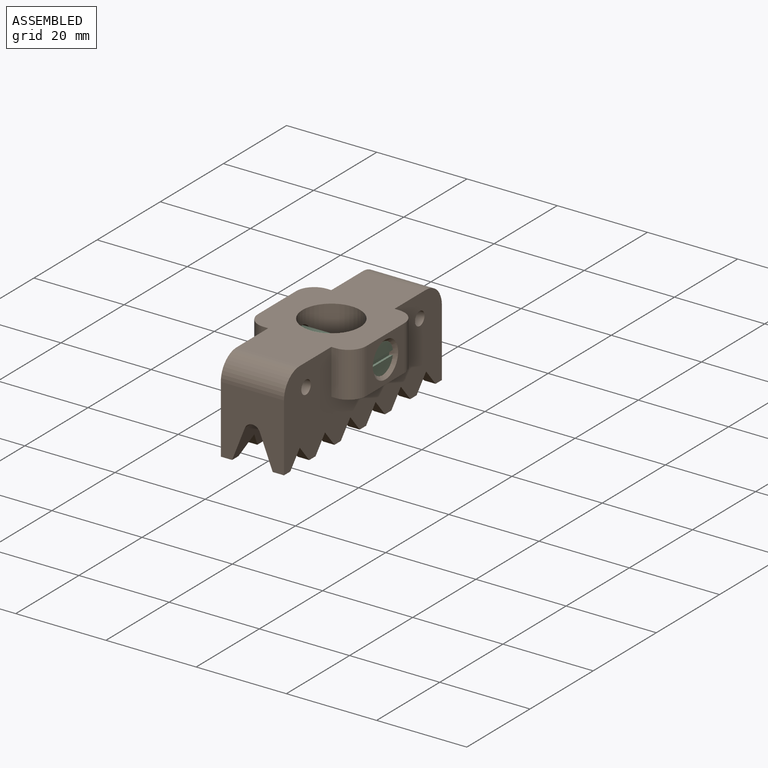
[diagram: assembled view]
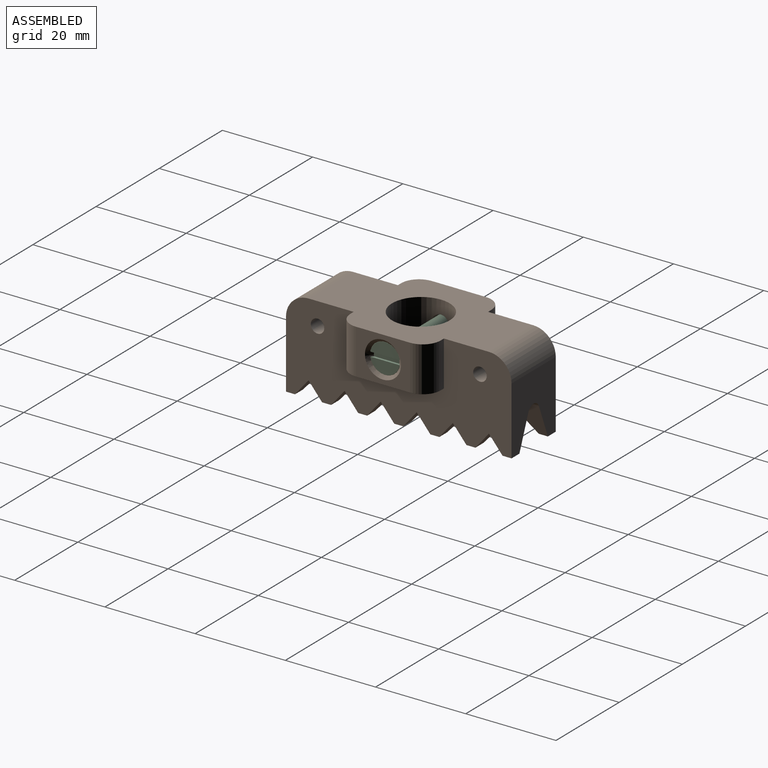
[diagram: assembled view, second angle]
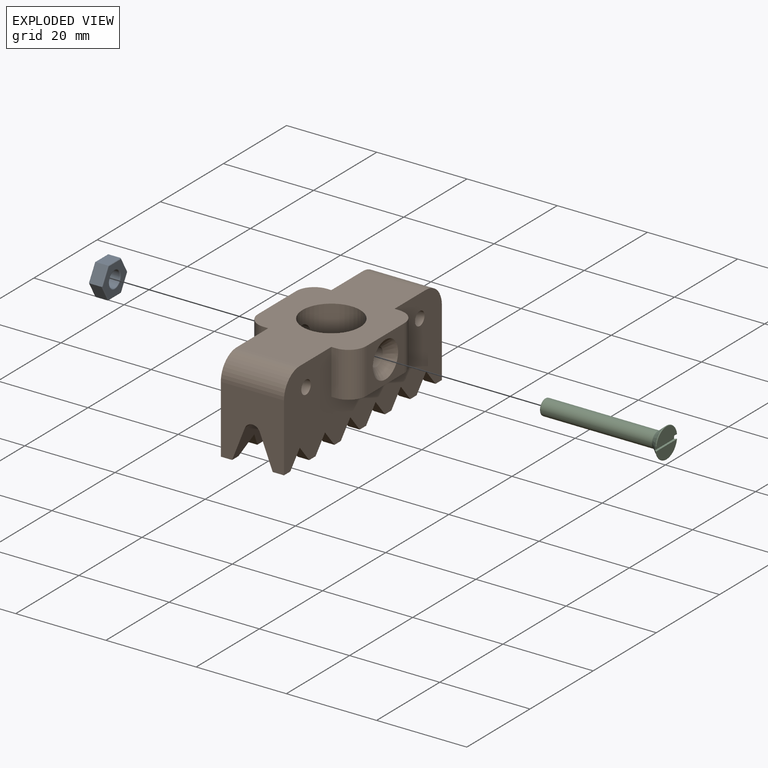
[diagram: exploded view]
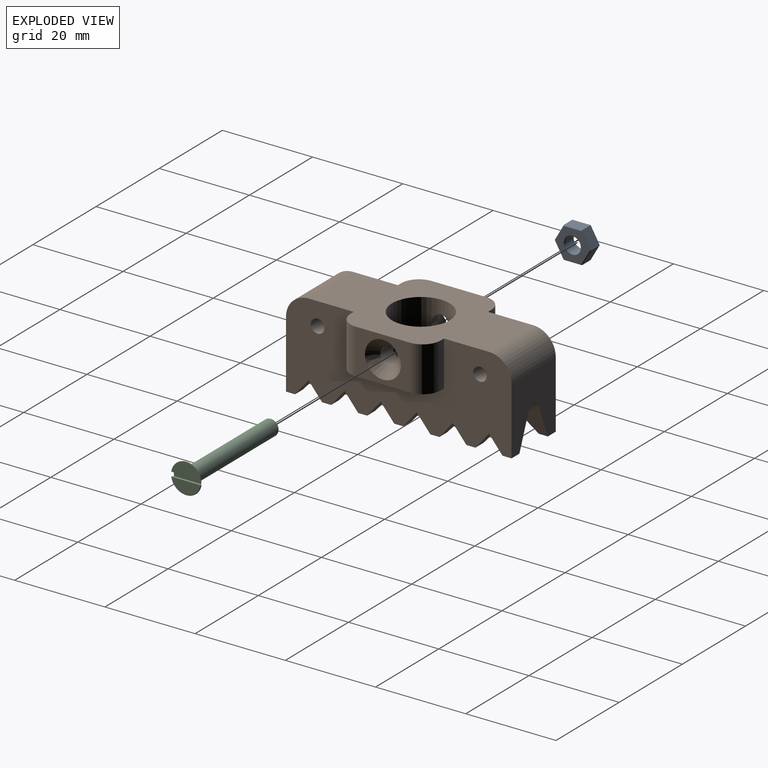
[diagram: exploded view, second angle]
ASSEMBLY  parts=3 mates=2
PART A: 23 faces, bbox 7x8.1x3 mm
  f0: plane 3.5x2.6mm, normal (0.5,-0.87,0), area 10.5mm2, adj f1,f5,f12,f19
  f1: plane 4.04x2.6mm, normal (1,0,0), area 10.5mm2, adj f0,f2,f10,f17
  f2: plane 3.5x2.6mm, normal (0.5,0.87,0), area 10.5mm2, adj f1,f3,f9,f16
  f3: plane 3.5x2.6mm, normal (-0.5,0.87,0), area 10.5mm2, adj f2,f4,f11,f18
  f4: plane 4.04x2.6mm, normal (-1,0,0), area 10.5mm2, adj f3,f5,f13,f20
  f5: plane 3.5x2.6mm, normal (-0.5,-0.87,0), area 10.5mm2, adj f0,f4,f14,f21
  f6: cylinder r=1.75mm len=3.5mm, axis (0,0,-1), area 28.6mm2, adj f15,f22
  f7: plane 7.62x6.6mm, normal (0,0,1), area 25.8mm2, adj f16,f17,f18,f19,f20,f21,f22
  f8: plane 7.62x6.6mm, normal (0,0,-1), area 25.8mm2, adj f9,f10,f11,f12,f13,f14,f15
  f9: cylinder r=0.2mm len=3.6mm, axis (-0.87,0.5,0), area 1.2mm2, adj f2,f8,f10,f11
  f10: cylinder r=0.2mm len=4.04mm, axis (0,1,0), area 1.2mm2, adj f1,f8,f9,f12
  f11: cylinder r=0.2mm len=3.6mm, axis (-0.87,-0.5,0), area 1.2mm2, adj f3,f8,f9,f13
  f12: cylinder r=0.2mm len=3.6mm, axis (0.87,0.5,0), area 1.2mm2, adj f0,f8,f10,f14
  f13: cylinder r=0.2mm len=4.04mm, axis (0,-1,0), area 1.2mm2, adj f4,f8,f11,f14
  f14: cylinder r=0.2mm len=3.6mm, axis (0.87,-0.5,0), area 1.2mm2, adj f5,f8,f12,f13
  f15: torus R=1.95mm, axis (0,0,1), area 3.6mm2, adj f6,f8
  f16: cylinder r=0.2mm len=3.6mm, axis (0.87,-0.5,0), area 1.2mm2, adj f2,f7,f17,f18
  f17: cylinder r=0.2mm len=4.04mm, axis (0,-1,0), area 1.2mm2, adj f1,f7,f16,f19
  f18: cylinder r=0.2mm len=3.6mm, axis (0.87,0.5,0), area 1.2mm2, adj f3,f7,f16,f20
  f19: cylinder r=0.2mm len=3.6mm, axis (-0.87,-0.5,0), area 1.2mm2, adj f0,f7,f17,f21
  f20: cylinder r=0.2mm len=4.04mm, axis (0,1,0), area 1.2mm2, adj f4,f7,f18,f21
  f21: cylinder r=0.2mm len=3.6mm, axis (-0.87,0.5,0), area 1.2mm2, adj f5,f7,f19,f20
  f22: torus R=1.95mm, axis (0,0,1), area 3.6mm2, adj f6,f7
PART B: 74 faces, bbox 24x50x20 mm
  f0: plane 12x10mm, normal (-1,0,0), area 75.1mm2, adj f19,f58,f59,f60,f65,f66,f67,f68
  f1: cylinder r=2mm len=4mm, axis (1,0,0), area 20.1mm2, adj f61,f71
  f2: plane 50x20mm, normal (-1,0,0), area 710mm2, adj f10,f11,f12,f13,f14,f15,f17,f18
  f3: plane 50x20mm, normal (1,0,0), area 710mm2, adj f4,f5,f6,f7,f8,f9,f16,f17
  f4: plane 2.5x2mm, normal (0,0,-1), area 5mm2, adj f3,f17,f23,f48
  f5: plane 2.5x2mm, normal (0,0,-1), area 5mm2, adj f3,f23,f46,f49
  f6: plane 2.5x2mm, normal (0,0,-1), area 5mm2, adj f3,f23,f44,f47
  f7: plane 2.5x2mm, normal (0,0,-1), area 5mm2, adj f3,f23,f42,f45
  f8: plane 2.5x2mm, normal (0,0,-1), area 5mm2, adj f3,f23,f40,f43
  f9: plane 2.5x2mm, normal (0,0,-1), area 5mm2, adj f3,f23,f38,f41
  f10: plane 2.5x2mm, normal (0,0,-1), area 5mm2, adj f2,f17,f25,f37
  f11: plane 2.5x2mm, normal (0,0,-1), area 5mm2, adj f2,f25,f35,f36
  f12: plane 2.5x2mm, normal (0,0,-1), area 5mm2, adj f2,f25,f33,f34
  f13: plane 2.5x2mm, normal (0,0,-1), area 5mm2, adj f2,f25,f31,f32
  f14: plane 2.5x2mm, normal (0,0,-1), area 5mm2, adj f2,f25,f29,f30
  f15: plane 2.5x2mm, normal (0,0,-1), area 5mm2, adj f2,f25,f27,f28
  f16: plane 2.5x2mm, normal (0,0,-1), area 5mm2, adj f3,f18,f23,f39
  f17: plane 15x14mm, normal (0,1,0), area 163mm2, adj f2,f3,f4,f10,f22,f23,f24,f25
  f18: plane 15x14mm, normal (0,-1,0), area 163mm2, adj f2,f3,f16,f20,f21,f23,f24,f25
  f19: plane 40x24mm, normal (0,0,1), area 617.6mm2, adj f0,f2,f3,f21,f22,f50,f51,f52
  f20: plane 2.5x2mm, normal (0,0,-1), area 5mm2, adj f2,f18,f25,f26
  f21: cylinder r=5mm len=14mm, axis (-1,0,0), area 110mm2, adj f2,f3,f18,f19
  f22: cylinder r=5mm len=14mm, axis (1,0,0), area 110mm2, adj f2,f3,f17,f19
  f23: plane 50x7.16mm, normal (-0.93,0,-0.37), area 314.9mm2, adj f4,f5,f6,f7,f8,f9,f16,f17
  f24: cylinder r=1.8mm len=50mm, axis (0,-1,0), area 215.1mm2, adj f17,f18,f23,f25
  f25: plane 50x7.16mm, normal (0.93,0,-0.37), area 314.9mm2, adj f10,f11,f12,f13,f14,f15,f17,f18
  f26: plane 3.93x3.62mm, normal (0,0.77,-0.64), area 15.1mm2, adj f2,f20,f25,f27
  f27: plane 3.93x3.62mm, normal (0,-0.77,-0.64), area 15.1mm2, adj f2,f15,f25,f26
  f28: plane 3.93x3.62mm, normal (0,0.77,-0.64), area 15.1mm2, adj f2,f15,f25,f29
  f29: plane 3.93x3.62mm, normal (0,-0.77,-0.64), area 15.1mm2, adj f2,f14,f25,f28
  f30: plane 3.93x3.62mm, normal (0,0.77,-0.64), area 15.1mm2, adj f2,f14,f25,f31
  f31: plane 3.93x3.62mm, normal (0,-0.77,-0.64), area 15.1mm2, adj f2,f13,f25,f30
  f32: plane 3.93x3.62mm, normal (0,0.77,-0.64), area 15.1mm2, adj f2,f13,f25,f33
  f33: plane 3.93x3.62mm, normal (0,-0.77,-0.64), area 15.1mm2, adj f2,f12,f25,f32
  f34: plane 3.93x3.62mm, normal (0,0.77,-0.64), area 15.1mm2, adj f2,f12,f25,f35
  f35: plane 3.93x3.62mm, normal (0,-0.77,-0.64), area 15.1mm2, adj f2,f11,f25,f34
  f36: plane 3.93x3.62mm, normal (0,0.77,-0.64), area 15.1mm2, adj f2,f11,f25,f37
  f37: plane 3.93x3.62mm, normal (0,-0.77,-0.64), area 15.1mm2, adj f2,f10,f25,f36
  f38: plane 3.93x3.62mm, normal (0,-0.77,-0.64), area 15.1mm2, adj f3,f9,f23,f39
  f39: plane 3.93x3.62mm, normal (0,0.77,-0.64), area 15.1mm2, adj f3,f16,f23,f38
  f40: plane 3.93x3.62mm, normal (0,-0.77,-0.64), area 15.1mm2, adj f3,f8,f23,f41
  f41: plane 3.93x3.62mm, normal (0,0.77,-0.64), area 15.1mm2, adj f3,f9,f23,f40
  f42: plane 3.93x3.62mm, normal (0,-0.77,-0.64), area 15.1mm2, adj f3,f7,f23,f43
  f43: plane 3.93x3.62mm, normal (0,0.77,-0.64), area 15.1mm2, adj f3,f8,f23,f42
  f44: plane 3.93x3.62mm, normal (0,-0.77,-0.64), area 15.1mm2, adj f3,f6,f23,f45
  f45: plane 3.93x3.62mm, normal (0,0.77,-0.64), area 15.1mm2, adj f3,f7,f23,f44
  f46: plane 3.93x3.62mm, normal (0,-0.77,-0.64), area 15.1mm2, adj f3,f5,f23,f47
  f47: plane 3.93x3.62mm, normal (0,0.77,-0.64), area 15.1mm2, adj f3,f6,f23,f46
  f48: plane 3.93x3.62mm, normal (0,-0.77,-0.64), area 15.1mm2, adj f3,f4,f23,f49
  f49: plane 3.93x3.62mm, normal (0,0.77,-0.64), area 15.1mm2, adj f3,f5,f23,f48
  f50: cylinder r=4mm len=10mm, axis (0,0,-1), area 62.8mm2, adj f19,f51,f53,f55
  f51: plane 12x10mm, normal (1,0,0), area 69.7mm2, adj f19,f50,f52,f53,f64
  f52: cylinder r=4mm len=10mm, axis (0,0,-1), area 62.8mm2, adj f19,f51,f53,f54
  f53: plane 20x5mm, normal (0,0,-1), area 93.1mm2, adj f3,f50,f51,f52,f54,f55
  f54: plane 10x1mm, normal (0,1,0), area 10mm2, adj f3,f19,f52,f53
  f55: plane 10x1mm, normal (0,-1,0), area 10mm2, adj f3,f19,f50,f53
  f56: plane 10x1mm, normal (0,-1,0), area 10mm2, adj f2,f19,f58,f59
  f57: plane 10x1mm, normal (0,1,0), area 10mm2, adj f2,f19,f58,f60
  f58: plane 20x5mm, normal (0,0,-1), area 93.1mm2, adj f0,f2,f56,f57,f59,f60
  f59: cylinder r=4mm len=10mm, axis (0,0,-1), area 62.8mm2, adj f0,f19,f56,f58
  f60: cylinder r=4mm len=10mm, axis (0,0,-1), area 62.8mm2, adj f0,f19,f57,f58
  f61: cylinder r=6.4mm len=12.8mm, axis (0,0,-1), area 376.7mm2, adj f1,f19,f62,f63
  f62: plane 12.8x12.8mm, normal (0,0,1), area 128.7mm2, adj f61
  f63: cylinder r=2mm len=4mm, axis (1,0,0), area 45.2mm2, adj f61,f64
  f64: cone r=2mm half-angle=45deg, axis (1,0,0), area 53.3mm2, adj f51,f63
  f65: plane 4x3.6mm, normal (0,-0.87,-0.5), area 16.6mm2, adj f0,f66,f70,f71
  f66: plane 4x3.6mm, normal (0,-0.87,0.5), area 16.6mm2, adj f0,f65,f67,f71
  f67: plane 4.16x4mm, normal (0,0,1), area 16.6mm2, adj f0,f66,f68,f71
  f68: plane 4x3.6mm, normal (0,0.87,0.5), area 16.6mm2, adj f0,f67,f69,f71
  f69: plane 4x3.6mm, normal (0,0.87,-0.5), area 16.6mm2, adj f0,f68,f70,f71
  f70: plane 4.16x4mm, normal (0,0,-1), area 16.6mm2, adj f0,f65,f69,f71
  f71: plane 8.31x7.2mm, normal (-1,0,0), area 32.3mm2, adj f1,f65,f66,f67,f68,f69,f70
  f72: cylinder r=1.5mm len=14mm, axis (1,0,0), area 131.9mm2, adj f2,f3
  f73: cylinder r=1.5mm len=14mm, axis (1,0,0), area 131.9mm2, adj f2,f3
PART C: 13 faces, bbox 7.3x7.2x27 mm
  f0: cone r=1.75mm half-angle=41deg, axis (0,0,1), area 36.7mm2, adj f1,f4,f5,f6,f9,f11,f12
  f1: cone r=1.75mm half-angle=41deg, axis (0,0,1), area 0mm2, adj f0,f5,f11
  f2: plane 6.46x2.77mm, normal (0,0,1), area 13.5mm2, adj f5,f11
  f3: plane 6.46x2.77mm, normal (0,0,1), area 13.5mm2, adj f6,f12
  f4: plane 6.11x1mm, normal (0,0,1), area 6.1mm2, adj f0,f5,f6
  f5: plane 6.67x0.5mm, normal (-1,0,0), area 3.2mm2, adj f0,f1,f2,f4,f11
  f6: plane 6.67x0.5mm, normal (1,0,0), area 3.2mm2, adj f0,f3,f4,f12
  f7: cylinder r=1.75mm len=24.59mm, axis (0,0,1), area 270.4mm2, adj f9,f10
  f8: plane 2.9x2.9mm, normal (0,0,-1), area 6.6mm2, adj f10
  f9: torus R=2.05mm, axis (0,0,1), area 2.4mm2, adj f0,f7
  f10: torus R=1.45mm, axis (0,0,1), area 4.9mm2, adj f7,f8
  f11: torus R=3.27mm, axis (0,0,1), area 2.2mm2, adj f0,f1,f2,f5
  f12: torus R=3.27mm, axis (0,0,1), area 2.2mm2, adj f0,f3,f6
PLACE A rot(axis=(0,1,0),90deg) t=(-11.04,10,5)mm
PLACE B t=(-0.04,0,0)mm
PLACE C rot(axis=(0,1,0),90deg) t=(9.3,-10,5)mm
MATE slider B.f1 <-> C.f0  axis (1,0,0) through (9.96,0,5)mm
MATE slider B.f1 <-> A.f6  axis (-1,0,0) through (-8.04,0,5)mm
